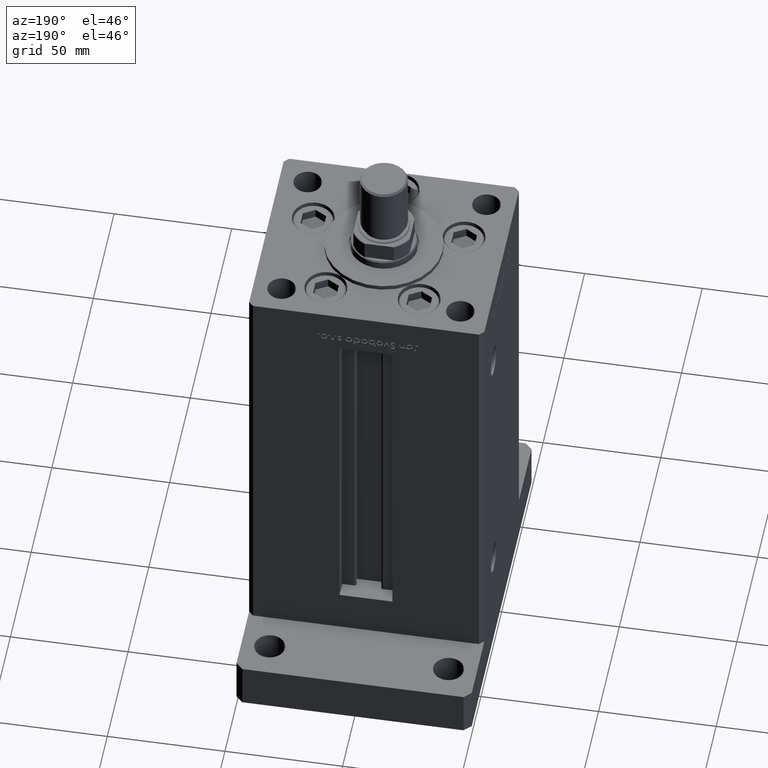
[diagram: clean part render]
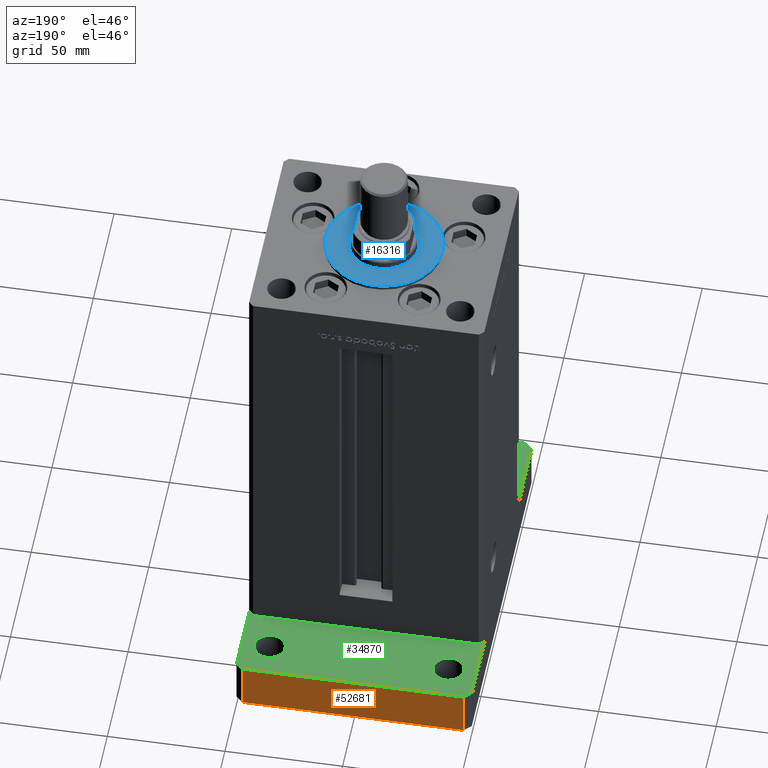
[diagram: same view with three faces highlighted in distinct colors, each labeled with its STEP entity id]
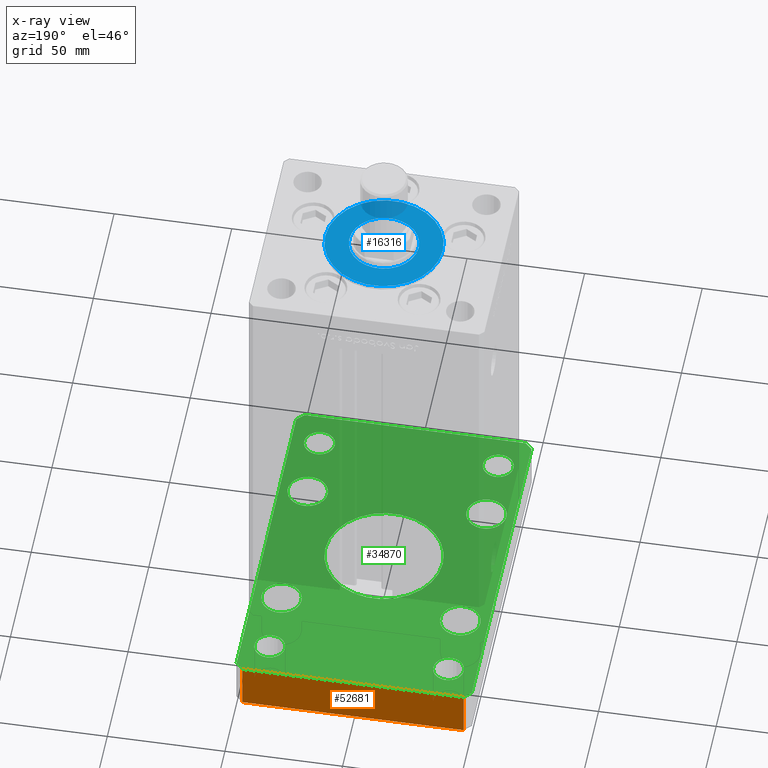
[diagram: x-ray of the same camera — body ghosted, the three highlighted faces saturated]
A machine part, auxiliary view with three faces highlighted in distinct colors.
The next image is the same camera in x-ray (body ghosted, the three faces saturated) — at least one of them is partly hidden behind the body in this view.
Their STEP definitions:

[orange] entity #52681 — the highlighted planar face has unit normal (0, -1, 0).
#962 = VECTOR ( 'NONE', #29419, 1000.000000000000000 ) ;
#1865 = ORIENTED_EDGE ( 'NONE', *, *, #32608, .F. ) ;
#2976 = VECTOR ( 'NONE', #27315, 1000.000000000000000 ) ;
#3933 = CARTESIAN_POINT ( 'NONE',  ( 47.00000000000002132, 75.00000000000002842, 20.00000000000000000 ) ) ;
#3971 = CARTESIAN_POINT ( 'NONE',  ( 47.00000000000002132, 75.00000000000002842, 20.00000000000000000 ) ) ;
#4436 = AXIS2_PLACEMENT_3D ( 'NONE', #3933, #20081, #40628 ) ;
#5005 = VERTEX_POINT ( 'NONE', #36123 ) ;
#7232 = EDGE_CURVE ( 'NONE', #5005, #34116, #19669, .T. ) ;
#7838 = EDGE_CURVE ( 'NONE', #21363, #34116, #51510, .T. ) ;
#14188 = VECTOR ( 'NONE', #30670, 1000.000000000000000 ) ;
#15870 = VECTOR ( 'NONE', #53633, 1000.000000000000000 ) ;
#16512 = EDGE_CURVE ( 'NONE', #45280, #21363, #23467, .T. ) ;
#18331 = CARTESIAN_POINT ( 'NONE',  ( 47.00000000000002132, 75.00000000000002842, 0.000000000000000000 ) ) ;
#18795 = CARTESIAN_POINT ( 'NONE',  ( -47.00000000000002842, 75.00000000000002842, 0.000000000000000000 ) ) ;
#19669 = LINE ( 'NONE', #36938, #15870 ) ;
#20081 = DIRECTION ( 'NONE',  ( 0.000000000000000000, -1.000000000000000000, 0.000000000000000000 ) ) ;
#20939 = LINE ( 'NONE', #37649, #962 ) ;
#21363 = VERTEX_POINT ( 'NONE', #29752 ) ;
#23467 = LINE ( 'NONE', #43486, #2976 ) ;
#24222 = ORIENTED_EDGE ( 'NONE', *, *, #7232, .F. ) ;
#24590 = EDGE_LOOP ( 'NONE', ( #47207, #24222, #1865, #40088 ) ) ;
#27315 = DIRECTION ( 'NONE',  ( -0.000000000000000000, -0.000000000000000000, -1.000000000000000000 ) ) ;
#28568 = PLANE ( 'NONE',  #4436 ) ;
#28838 = FACE_OUTER_BOUND ( 'NONE', #24590, .T. ) ;
#29419 = DIRECTION ( 'NONE',  ( -1.000000000000000000, 0.000000000000000000, 0.000000000000000000 ) ) ;
#29752 = CARTESIAN_POINT ( 'NONE',  ( 47.00000000000002132, 75.00000000000002842, 0.000000000000000000 ) ) ;
#30670 = DIRECTION ( 'NONE',  ( -1.000000000000000000, 0.000000000000000000, 0.000000000000000000 ) ) ;
#32608 = EDGE_CURVE ( 'NONE', #45280, #5005, #20939, .T. ) ;
#34116 = VERTEX_POINT ( 'NONE', #18795 ) ;
#36123 = CARTESIAN_POINT ( 'NONE',  ( -47.00000000000002842, 75.00000000000002842, 20.00000000000000000 ) ) ;
#36938 = CARTESIAN_POINT ( 'NONE',  ( -47.00000000000002842, 75.00000000000002842, 20.00000000000000000 ) ) ;
#37649 = CARTESIAN_POINT ( 'NONE',  ( 47.00000000000002132, 75.00000000000002842, 20.00000000000000000 ) ) ;
#40088 = ORIENTED_EDGE ( 'NONE', *, *, #16512, .T. ) ;
#40628 = DIRECTION ( 'NONE',  ( 0.000000000000000000, -0.000000000000000000, -1.000000000000000000 ) ) ;
#43486 = CARTESIAN_POINT ( 'NONE',  ( 47.00000000000002132, 75.00000000000002842, 20.00000000000000000 ) ) ;
#45280 = VERTEX_POINT ( 'NONE', #3971 ) ;
#47207 = ORIENTED_EDGE ( 'NONE', *, *, #7838, .T. ) ;
#51510 = LINE ( 'NONE', #18331, #14188 ) ;
#52681 = ADVANCED_FACE ( 'NONE', ( #28838 ), #28568, .F. ) ;
#53633 = DIRECTION ( 'NONE',  ( -0.000000000000000000, -0.000000000000000000, -1.000000000000000000 ) ) ;

[blue] entity #16316 — the highlighted planar face has unit normal (0, 0, 1).
#1372 = ORIENTED_EDGE ( 'NONE', *, *, #2665, .T. ) ;
#2665 = EDGE_CURVE ( 'NONE', #31514, #19407, #50777, .T. ) ;
#5297 = AXIS2_PLACEMENT_3D ( 'NONE', #40731, #48420, #31973 ) ;
#5809 = EDGE_CURVE ( 'NONE', #52966, #12964, #52590, .T. ) ;
#7246 = CARTESIAN_POINT ( 'NONE',  ( 14.75000000000000178, -6.938893903907228378E-15, 2.000000000000000000 ) ) ;
#8184 = DIRECTION ( 'NONE',  ( 0.000000000000000000, 0.000000000000000000, 1.000000000000000000 ) ) ;
#8436 = CARTESIAN_POINT ( 'NONE',  ( 0.000000000000000000, -6.938893903907228378E-15, 2.000000000000000000 ) ) ;
#9433 = CARTESIAN_POINT ( 'NONE',  ( 0.000000000000000000, -6.938893903907228378E-15, 2.000000000000000000 ) ) ;
#11760 = FACE_BOUND ( 'NONE', #14336, .T. ) ;
#12106 = CARTESIAN_POINT ( 'NONE',  ( -25.00000000000000000, -6.938893903907228378E-15, 2.000000000000000000 ) ) ;
#12964 = VERTEX_POINT ( 'NONE', #49936 ) ;
#14336 = EDGE_LOOP ( 'NONE', ( #32994, #31067 ) ) ;
#15866 = CARTESIAN_POINT ( 'NONE',  ( 0.000000000000000000, -6.938893903907228378E-15, 2.000000000000000000 ) ) ;
#16316 = ADVANCED_FACE ( 'NONE', ( #11760, #16936 ), #53397, .T. ) ;
#16936 = FACE_OUTER_BOUND ( 'NONE', #17163, .T. ) ;
#17163 = EDGE_LOOP ( 'NONE', ( #1372, #48347 ) ) ;
#17921 = DIRECTION ( 'NONE',  ( 0.000000000000000000, 0.000000000000000000, 1.000000000000000000 ) ) ;
#18668 = AXIS2_PLACEMENT_3D ( 'NONE', #15866, #8184, #41598 ) ;
#19407 = VERTEX_POINT ( 'NONE', #37775 ) ;
#20472 = EDGE_CURVE ( 'NONE', #12964, #52966, #24935, .T. ) ;
#22138 = DIRECTION ( 'NONE',  ( 0.000000000000000000, 0.000000000000000000, 1.000000000000000000 ) ) ;
#24935 = CIRCLE ( 'NONE', #38937, 14.75000000000000178 ) ;
#25141 = DIRECTION ( 'NONE',  ( 0.000000000000000000, 0.000000000000000000, 1.000000000000000000 ) ) ;
#26320 = AXIS2_PLACEMENT_3D ( 'NONE', #9433, #17921, #39544 ) ;
#27171 = CIRCLE ( 'NONE', #26320, 25.00000000000000000 ) ;
#31067 = ORIENTED_EDGE ( 'NONE', *, *, #20472, .F. ) ;
#31514 = VERTEX_POINT ( 'NONE', #12106 ) ;
#31973 = DIRECTION ( 'NONE',  ( 1.000000000000000000, 0.000000000000000000, 0.000000000000000000 ) ) ;
#32994 = ORIENTED_EDGE ( 'NONE', *, *, #5809, .F. ) ;
#33360 = EDGE_CURVE ( 'NONE', #19407, #31514, #27171, .T. ) ;
#37775 = CARTESIAN_POINT ( 'NONE',  ( 25.00000000000000000, -3.877276906038844941E-15, 2.000000000000000000 ) ) ;
#38937 = AXIS2_PLACEMENT_3D ( 'NONE', #42963, #22138, #47617 ) ;
#39544 = DIRECTION ( 'NONE',  ( 1.000000000000000000, 0.000000000000000000, 0.000000000000000000 ) ) ;
#40731 = CARTESIAN_POINT ( 'NONE',  ( 0.000000000000000000, -6.938893903907228378E-15, 2.000000000000000000 ) ) ;
#41598 = DIRECTION ( 'NONE',  ( 1.000000000000000000, 0.000000000000000000, -0.000000000000000000 ) ) ;
#42963 = CARTESIAN_POINT ( 'NONE',  ( 0.000000000000000000, -6.938893903907228378E-15, 2.000000000000000000 ) ) ;
#45595 = AXIS2_PLACEMENT_3D ( 'NONE', #8436, #25141, #51713 ) ;
#47617 = DIRECTION ( 'NONE',  ( 1.000000000000000000, 0.000000000000000000, 0.000000000000000000 ) ) ;
#48347 = ORIENTED_EDGE ( 'NONE', *, *, #33360, .T. ) ;
#48420 = DIRECTION ( 'NONE',  ( 0.000000000000000000, 0.000000000000000000, 1.000000000000000000 ) ) ;
#49936 = CARTESIAN_POINT ( 'NONE',  ( -14.75000000000000178, -5.132539875164881787E-15, 2.000000000000000000 ) ) ;
#50777 = CIRCLE ( 'NONE', #5297, 25.00000000000000000 ) ;
#51713 = DIRECTION ( 'NONE',  ( 1.000000000000000000, 0.000000000000000000, 0.000000000000000000 ) ) ;
#52590 = CIRCLE ( 'NONE', #45595, 14.75000000000000178 ) ;
#52966 = VERTEX_POINT ( 'NONE', #7246 ) ;
#53397 = PLANE ( 'NONE',  #18668 ) ;

[green] entity #34870 — the highlighted planar face has unit normal (0, 0, 1).
#328 = EDGE_CURVE ( 'NONE', #27961, #31258, #4909, .T. ) ;
#508 = CARTESIAN_POINT ( 'NONE',  ( 0.000000000000000000, 0.000000000000000000, 20.00000000000000000 ) ) ;
#580 = AXIS2_PLACEMENT_3D ( 'NONE', #8438, #21297, #41855 ) ;
#727 = LINE ( 'NONE', #9744, #35197 ) ;
#779 = VECTOR ( 'NONE', #5881, 999.9999999999998863 ) ;
#783 = FACE_BOUND ( 'NONE', #43643, .T. ) ;
#818 = DIRECTION ( 'NONE',  ( -0.7071067811865435759, 0.7071067811865515695, 0.000000000000000000 ) ) ;
#962 = VECTOR ( 'NONE', #29419, 1000.000000000000000 ) ;
#1075 = DIRECTION ( 'NONE',  ( 0.000000000000000000, 0.000000000000000000, 1.000000000000000000 ) ) ;
#1394 = VERTEX_POINT ( 'NONE', #41658 ) ;
#1454 = VECTOR ( 'NONE', #39766, 1000.000000000000114 ) ;
#2038 = CARTESIAN_POINT ( 'NONE',  ( -47.00000000000002842, 75.00000000000002842, 20.00000000000000000 ) ) ;
#2073 = ORIENTED_EDGE ( 'NONE', *, *, #9246, .F. ) ;
#2148 = AXIS2_PLACEMENT_3D ( 'NONE', #48687, #11700, #24293 ) ;
#2288 = ORIENTED_EDGE ( 'NONE', *, *, #9685, .F. ) ;
#2481 = ORIENTED_EDGE ( 'NONE', *, *, #5320, .F. ) ;
#2646 = LINE ( 'NONE', #19332, #44588 ) ;
#2648 = EDGE_LOOP ( 'NONE', ( #26278, #42933 ) ) ;
#2741 = DIRECTION ( 'NONE',  ( 0.000000000000000000, 0.000000000000000000, 1.000000000000000000 ) ) ;
#2851 = CARTESIAN_POINT ( 'NONE',  ( -44.49999999999999289, 59.99999999999999289, 20.00000000000000000 ) ) ;
#3089 = VERTEX_POINT ( 'NONE', #18165 ) ;
#3227 = EDGE_CURVE ( 'NONE', #33030, #33729, #7010, .T. ) ;
#3552 = VECTOR ( 'NONE', #7285, 1000.000000000000000 ) ;
#3971 = CARTESIAN_POINT ( 'NONE',  ( 47.00000000000002132, 75.00000000000002842, 20.00000000000000000 ) ) ;
#4084 = ORIENTED_EDGE ( 'NONE', *, *, #19690, .F. ) ;
#4204 = VERTEX_POINT ( 'NONE', #30649 ) ;
#4259 = LINE ( 'NONE', #19874, #3552 ) ;
#4877 = DIRECTION ( 'NONE',  ( 0.000000000000000000, 0.000000000000000000, 1.000000000000000000 ) ) ;
#4909 = CIRCLE ( 'NONE', #11899, 6.499999999999999112 ) ;
#4966 = AXIS2_PLACEMENT_3D ( 'NONE', #5669, #5130, #38800 ) ;
#5005 = VERTEX_POINT ( 'NONE', #36123 ) ;
#5080 = CARTESIAN_POINT ( 'NONE',  ( 50.00000000000000000, 72.00000000000001421, 20.00000000000000000 ) ) ;
#5130 = DIRECTION ( 'NONE',  ( 0.000000000000000000, 0.000000000000000000, 1.000000000000000000 ) ) ;
#5320 = EDGE_CURVE ( 'NONE', #20530, #18432, #36845, .T. ) ;
#5346 = CARTESIAN_POINT ( 'NONE',  ( -49.99999999999998579, -72.00000000000001421, 20.00000000000000000 ) ) ;
#5434 = FACE_BOUND ( 'NONE', #44559, .T. ) ;
#5669 = CARTESIAN_POINT ( 'NONE',  ( -38.00000000000000711, 31.50000000000000000, 20.00000000000000000 ) ) ;
#5692 = VERTEX_POINT ( 'NONE', #52566 ) ;
#5881 = DIRECTION ( 'NONE',  ( -0.7071067811865425767, -0.7071067811865525687, 0.000000000000000000 ) ) ;
#6315 = CARTESIAN_POINT ( 'NONE',  ( -38.00000000000000711, -31.50000000000000000, 20.00000000000000000 ) ) ;
#6389 = DIRECTION ( 'NONE',  ( 0.000000000000000000, 0.000000000000000000, 1.000000000000000000 ) ) ;
#6477 = DIRECTION ( 'NONE',  ( 0.000000000000000000, 0.000000000000000000, 1.000000000000000000 ) ) ;
#6790 = CIRCLE ( 'NONE', #44403, 6.499999999999999112 ) ;
#7010 = CIRCLE ( 'NONE', #38518, 6.499999999999999112 ) ;
#7285 = DIRECTION ( 'NONE',  ( 1.927470528863118802E-16, -1.000000000000000000, 0.000000000000000000 ) ) ;
#7630 = EDGE_LOOP ( 'NONE', ( #31942, #2481 ) ) ;
#7717 = VERTEX_POINT ( 'NONE', #14554 ) ;
#8056 = EDGE_LOOP ( 'NONE', ( #26548, #8375 ) ) ;
#8070 = CARTESIAN_POINT ( 'NONE',  ( 0.000000000000000000, 0.000000000000000000, 20.00000000000000000 ) ) ;
#8375 = ORIENTED_EDGE ( 'NONE', *, *, #13521, .F. ) ;
#8438 = CARTESIAN_POINT ( 'NONE',  ( 37.99999999999999289, -31.49999999999999289, 20.00000000000000000 ) ) ;
#8498 = ORIENTED_EDGE ( 'NONE', *, *, #35318, .T. ) ;
#8861 = DIRECTION ( 'NONE',  ( 1.000000000000000000, 0.000000000000000000, 0.000000000000000000 ) ) ;
#9012 = EDGE_CURVE ( 'NONE', #26053, #7717, #727, .T. ) ;
#9031 = EDGE_CURVE ( 'NONE', #7717, #51869, #33846, .T. ) ;
#9246 = EDGE_CURVE ( 'NONE', #29626, #50452, #46574, .T. ) ;
#9299 = CARTESIAN_POINT ( 'NONE',  ( 47.00000000000001421, -74.99999999999988631, 20.00000000000000000 ) ) ;
#9685 = EDGE_CURVE ( 'NONE', #24902, #46083, #35233, .T. ) ;
#9744 = CARTESIAN_POINT ( 'NONE',  ( -49.99999999999998579, -72.00000000000001421, 20.00000000000000000 ) ) ;
#10489 = DIRECTION ( 'NONE',  ( 1.000000000000000000, 0.000000000000000000, 0.000000000000000000 ) ) ;
#11132 = AXIS2_PLACEMENT_3D ( 'NONE', #42387, #4877, #45696 ) ;
#11700 = DIRECTION ( 'NONE',  ( 0.000000000000000000, 0.000000000000000000, 1.000000000000000000 ) ) ;
#11899 = AXIS2_PLACEMENT_3D ( 'NONE', #29714, #37407, #17112 ) ;
#12216 = CARTESIAN_POINT ( 'NONE',  ( 44.49999999999997868, -60.00000000000000711, 20.00000000000000000 ) ) ;
#12575 = AXIS2_PLACEMENT_3D ( 'NONE', #6315, #2741, #48211 ) ;
#12795 = CIRCLE ( 'NONE', #580, 8.499999999999992895 ) ;
#13028 = CARTESIAN_POINT ( 'NONE',  ( -47.00000000000000000, -75.00000000000000000, 20.00000000000000000 ) ) ;
#13414 = EDGE_LOOP ( 'NONE', ( #38348, #2073 ) ) ;
#13438 = ORIENTED_EDGE ( 'NONE', *, *, #40473, .F. ) ;
#13521 = EDGE_CURVE ( 'NONE', #25358, #1394, #53682, .T. ) ;
#14014 = EDGE_LOOP ( 'NONE', ( #40496, #8498, #15729, #42020, #40634, #52518, #50615, #49243 ) ) ;
#14554 = CARTESIAN_POINT ( 'NONE',  ( -47.00000000000000000, -75.00000000000000000, 20.00000000000000000 ) ) ;
#14718 = CARTESIAN_POINT ( 'NONE',  ( 25.00000000000000000, 3.061616997868383043E-15, 20.00000000000000000 ) ) ;
#14772 = CARTESIAN_POINT ( 'NONE',  ( 37.99999999999999289, 31.49999999999999289, 20.00000000000000000 ) ) ;
#15393 = EDGE_CURVE ( 'NONE', #1394, #25358, #46766, .T. ) ;
#15684 = AXIS2_PLACEMENT_3D ( 'NONE', #8070, #33789, #50526 ) ;
#15729 = ORIENTED_EDGE ( 'NONE', *, *, #49607, .T. ) ;
#15802 = CIRCLE ( 'NONE', #43758, 6.499999999999999112 ) ;
#16174 = AXIS2_PLACEMENT_3D ( 'NONE', #14772, #48207, #31760 ) ;
#16177 = EDGE_CURVE ( 'NONE', #46083, #24902, #50214, .T. ) ;
#16924 = PLANE ( 'NONE',  #37287 ) ;
#16982 = CARTESIAN_POINT ( 'NONE',  ( -37.99999999999997868, -60.00000000000000711, 20.00000000000000000 ) ) ;
#17112 = DIRECTION ( 'NONE',  ( 1.000000000000000000, 0.000000000000000000, 0.000000000000000000 ) ) ;
#17288 = CIRCLE ( 'NONE', #19796, 6.499999999999999112 ) ;
#17342 = CARTESIAN_POINT ( 'NONE',  ( 38.00000000000000000, 59.99999999999998579, 20.00000000000000000 ) ) ;
#18165 = CARTESIAN_POINT ( 'NONE',  ( 29.49999999999999645, -31.49999999999999289, 20.00000000000000000 ) ) ;
#18413 = LINE ( 'NONE', #34595, #1454 ) ;
#18432 = VERTEX_POINT ( 'NONE', #31498 ) ;
#18781 = DIRECTION ( 'NONE',  ( 1.000000000000000000, 0.000000000000000000, 0.000000000000000000 ) ) ;
#18814 = EDGE_CURVE ( 'NONE', #47973, #5692, #42371, .T. ) ;
#18961 = CARTESIAN_POINT ( 'NONE',  ( 31.49999999999997868, -60.00000000000000711, 20.00000000000000000 ) ) ;
#19332 = CARTESIAN_POINT ( 'NONE',  ( 50.00000000000000000, -71.99999999999988631, 20.00000000000000000 ) ) ;
#19468 = CARTESIAN_POINT ( 'NONE',  ( -31.49999999999997868, -60.00000000000000711, 20.00000000000000000 ) ) ;
#19690 = EDGE_CURVE ( 'NONE', #38614, #4204, #45896, .T. ) ;
#19796 = AXIS2_PLACEMENT_3D ( 'NONE', #28987, #20760, #54184 ) ;
#19874 = CARTESIAN_POINT ( 'NONE',  ( -50.00000000000001421, 72.00000000000000000, 20.00000000000000000 ) ) ;
#20530 = VERTEX_POINT ( 'NONE', #14718 ) ;
#20760 = DIRECTION ( 'NONE',  ( 0.000000000000000000, 0.000000000000000000, 1.000000000000000000 ) ) ;
#20939 = LINE ( 'NONE', #37649, #962 ) ;
#21245 = DIRECTION ( 'NONE',  ( 0.7071067811865474617, -0.7071067811865474617, 0.000000000000000000 ) ) ;
#21297 = DIRECTION ( 'NONE',  ( 0.000000000000000000, 0.000000000000000000, 1.000000000000000000 ) ) ;
#21727 = DIRECTION ( 'NONE',  ( 0.000000000000000000, 0.000000000000000000, 1.000000000000000000 ) ) ;
#22117 = DIRECTION ( 'NONE',  ( 0.000000000000000000, 0.000000000000000000, 1.000000000000000000 ) ) ;
#22596 = EDGE_LOOP ( 'NONE', ( #4084, #29558 ) ) ;
#22901 = DIRECTION ( 'NONE',  ( 1.000000000000000000, 0.000000000000000000, 0.000000000000000000 ) ) ;
#23155 = ORIENTED_EDGE ( 'NONE', *, *, #3227, .F. ) ;
#24293 = DIRECTION ( 'NONE',  ( 1.000000000000000000, 0.000000000000000000, 0.000000000000000000 ) ) ;
#24345 = EDGE_CURVE ( 'NONE', #5692, #47973, #39043, .T. ) ;
#24400 = DIRECTION ( 'NONE',  ( 0.000000000000000000, 0.000000000000000000, 1.000000000000000000 ) ) ;
#24902 = VERTEX_POINT ( 'NONE', #50206 ) ;
#25358 = VERTEX_POINT ( 'NONE', #54106 ) ;
#26053 = VERTEX_POINT ( 'NONE', #5346 ) ;
#26232 = FACE_OUTER_BOUND ( 'NONE', #14014, .T. ) ;
#26278 = ORIENTED_EDGE ( 'NONE', *, *, #18814, .F. ) ;
#26495 = DIRECTION ( 'NONE',  ( 1.000000000000000000, 0.000000000000000000, -0.000000000000000000 ) ) ;
#26548 = ORIENTED_EDGE ( 'NONE', *, *, #15393, .F. ) ;
#26702 = CARTESIAN_POINT ( 'NONE',  ( 44.50000000000000000, 59.99999999999998579, 20.00000000000000000 ) ) ;
#26890 = EDGE_CURVE ( 'NONE', #4204, #38614, #47895, .T. ) ;
#27679 = CARTESIAN_POINT ( 'NONE',  ( 38.00000000000000000, 59.99999999999998579, 20.00000000000000000 ) ) ;
#27737 = CARTESIAN_POINT ( 'NONE',  ( -46.50000000000000711, 31.50000000000000000, 20.00000000000000000 ) ) ;
#27827 = CARTESIAN_POINT ( 'NONE',  ( 0.000000000000000000, 0.000000000000000000, 20.00000000000000000 ) ) ;
#27961 = VERTEX_POINT ( 'NONE', #12216 ) ;
#28987 = CARTESIAN_POINT ( 'NONE',  ( 37.99999999999997868, -60.00000000000000711, 20.00000000000000000 ) ) ;
#29419 = DIRECTION ( 'NONE',  ( -1.000000000000000000, 0.000000000000000000, 0.000000000000000000 ) ) ;
#29520 = FACE_BOUND ( 'NONE', #2648, .T. ) ;
#29558 = ORIENTED_EDGE ( 'NONE', *, *, #26890, .F. ) ;
#29626 = VERTEX_POINT ( 'NONE', #26702 ) ;
#29714 = CARTESIAN_POINT ( 'NONE',  ( 37.99999999999997868, -60.00000000000000711, 20.00000000000000000 ) ) ;
#30338 = FACE_BOUND ( 'NONE', #13414, .T. ) ;
#30649 = CARTESIAN_POINT ( 'NONE',  ( -31.49999999999999289, 59.99999999999999289, 20.00000000000000000 ) ) ;
#31258 = VERTEX_POINT ( 'NONE', #18961 ) ;
#31461 = CARTESIAN_POINT ( 'NONE',  ( 37.99999999999999289, 31.49999999999999289, 20.00000000000000000 ) ) ;
#31498 = CARTESIAN_POINT ( 'NONE',  ( -25.00000000000000000, 0.000000000000000000, 20.00000000000000000 ) ) ;
#31760 = DIRECTION ( 'NONE',  ( 1.000000000000000000, 0.000000000000000000, 0.000000000000000000 ) ) ;
#31942 = ORIENTED_EDGE ( 'NONE', *, *, #50142, .F. ) ;
#32575 = VECTOR ( 'NONE', #33579, 1000.000000000000000 ) ;
#32608 = EDGE_CURVE ( 'NONE', #45280, #5005, #20939, .T. ) ;
#33030 = VERTEX_POINT ( 'NONE', #47029 ) ;
#33070 = CARTESIAN_POINT ( 'NONE',  ( -37.99999999999999289, 59.99999999999999289, 20.00000000000000000 ) ) ;
#33434 = ORIENTED_EDGE ( 'NONE', *, *, #328, .F. ) ;
#33457 = AXIS2_PLACEMENT_3D ( 'NONE', #38585, #1075, #34472 ) ;
#33579 = DIRECTION ( 'NONE',  ( 1.000000000000000000, 1.181088324069315250E-15, 0.000000000000000000 ) ) ;
#33729 = VERTEX_POINT ( 'NONE', #19468 ) ;
#33789 = DIRECTION ( 'NONE',  ( 0.000000000000000000, 0.000000000000000000, 1.000000000000000000 ) ) ;
#33846 = LINE ( 'NONE', #13028, #32575 ) ;
#34456 = FACE_BOUND ( 'NONE', #7630, .T. ) ;
#34472 = DIRECTION ( 'NONE',  ( 1.000000000000000000, 0.000000000000000000, 0.000000000000000000 ) ) ;
#34595 = CARTESIAN_POINT ( 'NONE',  ( 47.00000000000001421, -74.99999999999988631, 20.00000000000000000 ) ) ;
#34870 = ADVANCED_FACE ( 'NONE', ( #34456, #29520, #46512, #51184, #783, #26232, #30338, #38017, #42938, #5434 ), #16924, .T. ) ;
#34941 = ORIENTED_EDGE ( 'NONE', *, *, #40540, .F. ) ;
#35197 = VECTOR ( 'NONE', #21245, 1000.000000000000114 ) ;
#35233 = CIRCLE ( 'NONE', #33457, 8.500000000000000000 ) ;
#35318 = EDGE_CURVE ( 'NONE', #51869, #46914, #18413, .T. ) ;
#36096 = EDGE_LOOP ( 'NONE', ( #13438, #37875 ) ) ;
#36123 = CARTESIAN_POINT ( 'NONE',  ( -47.00000000000002842, 75.00000000000002842, 20.00000000000000000 ) ) ;
#36281 = AXIS2_PLACEMENT_3D ( 'NONE', #33070, #48973, #36374 ) ;
#36374 = DIRECTION ( 'NONE',  ( 1.000000000000000000, 0.000000000000000000, 0.000000000000000000 ) ) ;
#36624 = AXIS2_PLACEMENT_3D ( 'NONE', #48109, #6477, #18781 ) ;
#36845 = CIRCLE ( 'NONE', #49083, 25.00000000000000000 ) ;
#37287 = AXIS2_PLACEMENT_3D ( 'NONE', #508, #22117, #26495 ) ;
#37407 = DIRECTION ( 'NONE',  ( 0.000000000000000000, 0.000000000000000000, 1.000000000000000000 ) ) ;
#37649 = CARTESIAN_POINT ( 'NONE',  ( 47.00000000000002132, 75.00000000000002842, 20.00000000000000000 ) ) ;
#37875 = ORIENTED_EDGE ( 'NONE', *, *, #46998, .F. ) ;
#38017 = FACE_BOUND ( 'NONE', #49544, .T. ) ;
#38048 = LINE ( 'NONE', #38326, #48820 ) ;
#38326 = CARTESIAN_POINT ( 'NONE',  ( 50.00000000000000000, 72.00000000000001421, 20.00000000000000000 ) ) ;
#38348 = ORIENTED_EDGE ( 'NONE', *, *, #51634, .F. ) ;
#38518 = AXIS2_PLACEMENT_3D ( 'NONE', #49106, #6389, #10489 ) ;
#38585 = CARTESIAN_POINT ( 'NONE',  ( -38.00000000000000711, -31.50000000000000000, 20.00000000000000000 ) ) ;
#38614 = VERTEX_POINT ( 'NONE', #2851 ) ;
#38800 = DIRECTION ( 'NONE',  ( 1.000000000000000000, 0.000000000000000000, 0.000000000000000000 ) ) ;
#39043 = CIRCLE ( 'NONE', #4966, 8.500000000000000000 ) ;
#39131 = ORIENTED_EDGE ( 'NONE', *, *, #40112, .F. ) ;
#39766 = DIRECTION ( 'NONE',  ( 0.7071067811865459074, 0.7071067811865491270, 0.000000000000000000 ) ) ;
#39818 = VERTEX_POINT ( 'NONE', #50494 ) ;
#40112 = EDGE_CURVE ( 'NONE', #33729, #33030, #6790, .T. ) ;
#40275 = DIRECTION ( 'NONE',  ( 0.000000000000000000, 0.000000000000000000, 1.000000000000000000 ) ) ;
#40473 = EDGE_CURVE ( 'NONE', #3089, #45476, #12795, .T. ) ;
#40496 = ORIENTED_EDGE ( 'NONE', *, *, #9031, .T. ) ;
#40540 = EDGE_CURVE ( 'NONE', #31258, #27961, #17288, .T. ) ;
#40634 = ORIENTED_EDGE ( 'NONE', *, *, #32608, .T. ) ;
#40699 = DIRECTION ( 'NONE',  ( 0.000000000000000000, 1.000000000000000000, 0.000000000000000000 ) ) ;
#41116 = DIRECTION ( 'NONE',  ( 1.000000000000000000, 0.000000000000000000, 0.000000000000000000 ) ) ;
#41658 = CARTESIAN_POINT ( 'NONE',  ( 29.49999999999999645, 31.49999999999999289, 20.00000000000000000 ) ) ;
#41855 = DIRECTION ( 'NONE',  ( 1.000000000000000000, 0.000000000000000000, 0.000000000000000000 ) ) ;
#42020 = ORIENTED_EDGE ( 'NONE', *, *, #45876, .T. ) ;
#42371 = CIRCLE ( 'NONE', #2148, 8.500000000000000000 ) ;
#42387 = CARTESIAN_POINT ( 'NONE',  ( -37.99999999999999289, 59.99999999999999289, 20.00000000000000000 ) ) ;
#42933 = ORIENTED_EDGE ( 'NONE', *, *, #24345, .F. ) ;
#42938 = FACE_BOUND ( 'NONE', #8056, .T. ) ;
#43176 = CARTESIAN_POINT ( 'NONE',  ( -46.50000000000000711, -31.50000000000000000, 20.00000000000000000 ) ) ;
#43389 = LINE ( 'NONE', #2038, #779 ) ;
#43643 = EDGE_LOOP ( 'NONE', ( #23155, #39131 ) ) ;
#43758 = AXIS2_PLACEMENT_3D ( 'NONE', #27679, #40275, #52616 ) ;
#44176 = CARTESIAN_POINT ( 'NONE',  ( 46.49999999999998579, -31.49999999999999289, 20.00000000000000000 ) ) ;
#44403 = AXIS2_PLACEMENT_3D ( 'NONE', #16982, #24400, #41116 ) ;
#44540 = DIRECTION ( 'NONE',  ( 0.000000000000000000, 0.000000000000000000, 1.000000000000000000 ) ) ;
#44559 = EDGE_LOOP ( 'NONE', ( #34941, #33434 ) ) ;
#44588 = VECTOR ( 'NONE', #40699, 1000.000000000000000 ) ;
#45280 = VERTEX_POINT ( 'NONE', #3971 ) ;
#45476 = VERTEX_POINT ( 'NONE', #44176 ) ;
#45696 = DIRECTION ( 'NONE',  ( 1.000000000000000000, 0.000000000000000000, 0.000000000000000000 ) ) ;
#45876 = EDGE_CURVE ( 'NONE', #49819, #45280, #38048, .T. ) ;
#45896 = CIRCLE ( 'NONE', #36281, 6.499999999999999112 ) ;
#46083 = VERTEX_POINT ( 'NONE', #43176 ) ;
#46512 = FACE_BOUND ( 'NONE', #36096, .T. ) ;
#46574 = CIRCLE ( 'NONE', #49198, 6.499999999999999112 ) ;
#46763 = CARTESIAN_POINT ( 'NONE',  ( 50.00000000000000000, -71.99999999999988631, 20.00000000000000000 ) ) ;
#46766 = CIRCLE ( 'NONE', #16174, 8.499999999999992895 ) ;
#46914 = VERTEX_POINT ( 'NONE', #46763 ) ;
#46998 = EDGE_CURVE ( 'NONE', #45476, #3089, #48858, .T. ) ;
#47029 = CARTESIAN_POINT ( 'NONE',  ( -44.49999999999997868, -60.00000000000000711, 20.00000000000000000 ) ) ;
#47247 = EDGE_CURVE ( 'NONE', #5005, #39818, #43389, .T. ) ;
#47895 = CIRCLE ( 'NONE', #11132, 6.499999999999999112 ) ;
#47973 = VERTEX_POINT ( 'NONE', #27737 ) ;
#48078 = CIRCLE ( 'NONE', #15684, 25.00000000000000000 ) ;
#48109 = CARTESIAN_POINT ( 'NONE',  ( 37.99999999999999289, -31.49999999999999289, 20.00000000000000000 ) ) ;
#48207 = DIRECTION ( 'NONE',  ( 0.000000000000000000, 0.000000000000000000, 1.000000000000000000 ) ) ;
#48211 = DIRECTION ( 'NONE',  ( 1.000000000000000000, 0.000000000000000000, 0.000000000000000000 ) ) ;
#48687 = CARTESIAN_POINT ( 'NONE',  ( -38.00000000000000711, 31.50000000000000000, 20.00000000000000000 ) ) ;
#48820 = VECTOR ( 'NONE', #818, 999.9999999999998863 ) ;
#48858 = CIRCLE ( 'NONE', #36624, 8.499999999999992895 ) ;
#48973 = DIRECTION ( 'NONE',  ( 0.000000000000000000, 0.000000000000000000, 1.000000000000000000 ) ) ;
#49083 = AXIS2_PLACEMENT_3D ( 'NONE', #27827, #44540, #22901 ) ;
#49106 = CARTESIAN_POINT ( 'NONE',  ( -37.99999999999997868, -60.00000000000000711, 20.00000000000000000 ) ) ;
#49198 = AXIS2_PLACEMENT_3D ( 'NONE', #17342, #21727, #8861 ) ;
#49243 = ORIENTED_EDGE ( 'NONE', *, *, #9012, .T. ) ;
#49356 = AXIS2_PLACEMENT_3D ( 'NONE', #31461, #52823, #49537 ) ;
#49537 = DIRECTION ( 'NONE',  ( 1.000000000000000000, 0.000000000000000000, 0.000000000000000000 ) ) ;
#49544 = EDGE_LOOP ( 'NONE', ( #53639, #2288 ) ) ;
#49607 = EDGE_CURVE ( 'NONE', #46914, #49819, #2646, .T. ) ;
#49819 = VERTEX_POINT ( 'NONE', #5080 ) ;
#50142 = EDGE_CURVE ( 'NONE', #18432, #20530, #48078, .T. ) ;
#50206 = CARTESIAN_POINT ( 'NONE',  ( -29.50000000000000711, -31.50000000000000000, 20.00000000000000000 ) ) ;
#50214 = CIRCLE ( 'NONE', #12575, 8.500000000000000000 ) ;
#50452 = VERTEX_POINT ( 'NONE', #53747 ) ;
#50494 = CARTESIAN_POINT ( 'NONE',  ( -50.00000000000001421, 72.00000000000000000, 20.00000000000000000 ) ) ;
#50526 = DIRECTION ( 'NONE',  ( 1.000000000000000000, 0.000000000000000000, 0.000000000000000000 ) ) ;
#50615 = ORIENTED_EDGE ( 'NONE', *, *, #52375, .T. ) ;
#51184 = FACE_BOUND ( 'NONE', #22596, .T. ) ;
#51634 = EDGE_CURVE ( 'NONE', #50452, #29626, #15802, .T. ) ;
#51869 = VERTEX_POINT ( 'NONE', #9299 ) ;
#52375 = EDGE_CURVE ( 'NONE', #39818, #26053, #4259, .T. ) ;
#52518 = ORIENTED_EDGE ( 'NONE', *, *, #47247, .T. ) ;
#52566 = CARTESIAN_POINT ( 'NONE',  ( -29.50000000000000711, 31.50000000000000000, 20.00000000000000000 ) ) ;
#52616 = DIRECTION ( 'NONE',  ( 1.000000000000000000, 0.000000000000000000, 0.000000000000000000 ) ) ;
#52823 = DIRECTION ( 'NONE',  ( 0.000000000000000000, 0.000000000000000000, 1.000000000000000000 ) ) ;
#53639 = ORIENTED_EDGE ( 'NONE', *, *, #16177, .F. ) ;
#53682 = CIRCLE ( 'NONE', #49356, 8.499999999999992895 ) ;
#53747 = CARTESIAN_POINT ( 'NONE',  ( 31.50000000000000000, 59.99999999999998579, 20.00000000000000000 ) ) ;
#54106 = CARTESIAN_POINT ( 'NONE',  ( 46.49999999999998579, 31.49999999999999289, 20.00000000000000000 ) ) ;
#54184 = DIRECTION ( 'NONE',  ( 1.000000000000000000, 0.000000000000000000, 0.000000000000000000 ) ) ;